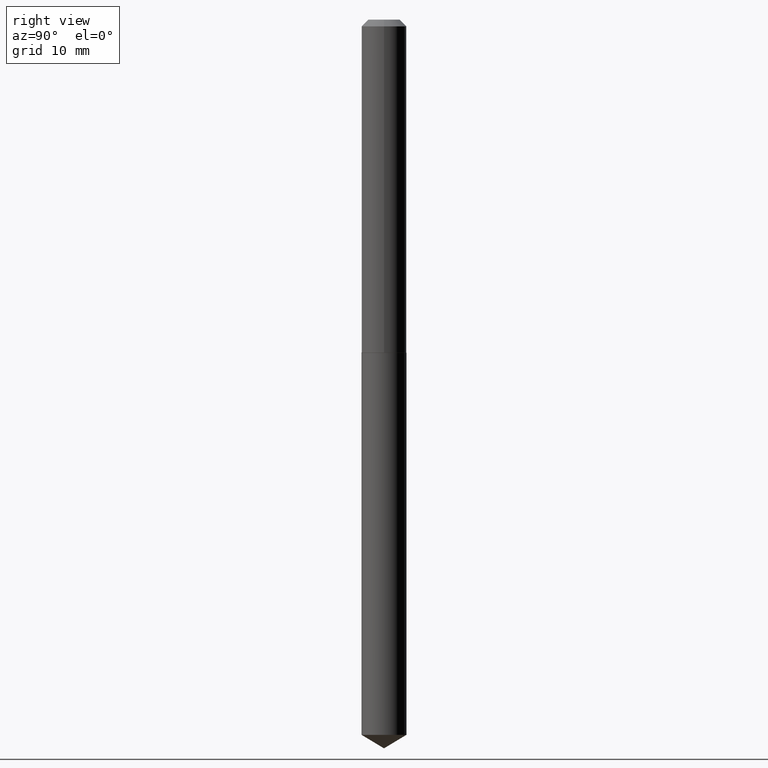
[diagram: clean part render]
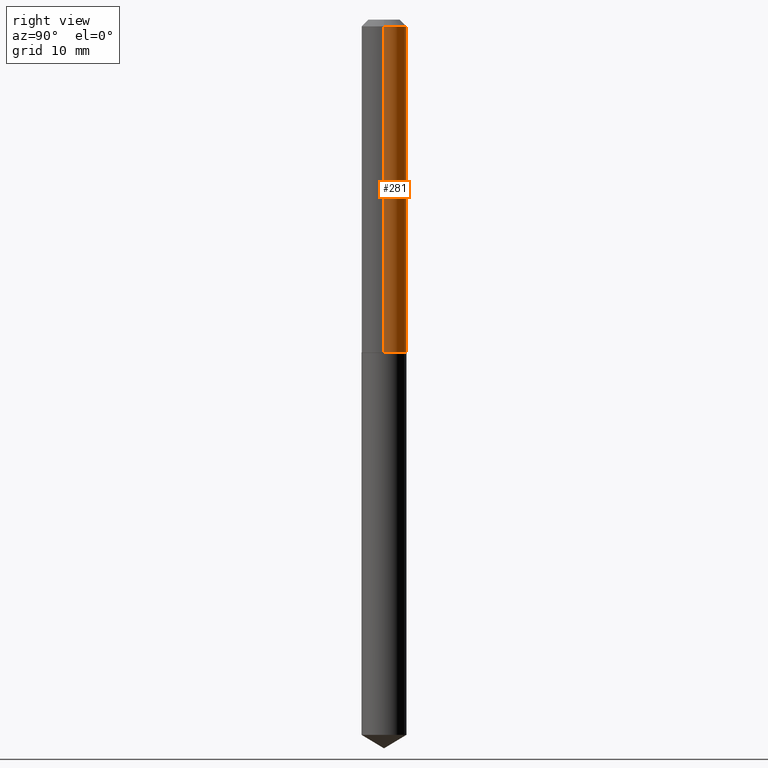
[diagram: same view with one face highlighted and labeled with its STEP entity id]
A machine part, right view. The second image highlights one B-rep face of the part: STEP entity #281.
In plain terms, the highlighted cylindrical surface (edge-blend (fillet) strip) has radius 2.6505 mm, axis along (-0, 0, 1).
Its self-contained STEP definition (entity closure, byte-faithful):
#1 = DIRECTION ( 'NONE',  ( -2.445468806185136597E-29, 3.491481338843145583E-15, 1.000000000000000000 ) ) ;
#12 = DIRECTION ( 'NONE',  ( -2.445468806185136597E-29, 3.491481338843145583E-15, 1.000000000000000000 ) ) ;
#28 = EDGE_LOOP ( 'NONE', ( #175, #182, #354, #53 ) ) ;
#40 = EDGE_CURVE ( 'NONE', #82, #241, #119, .T. ) ;
#47 = EDGE_CURVE ( 'NONE', #241, #323, #180, .T. ) ;
#49 = EDGE_CURVE ( 'NONE', #386, #323, #71, .T. ) ;
#53 = ORIENTED_EDGE ( 'NONE', *, *, #162, .F. ) ;
#58 = DIRECTION ( 'NONE',  ( -2.445468806185136597E-29, 3.491481338843145583E-15, 1.000000000000000000 ) ) ;
#71 = CIRCLE ( 'NONE', #127, 0.1043499999999999844 ) ;
#76 = CARTESIAN_POINT ( 'NONE',  ( 0.1043500000000000816, -7.286721554165625095E-16, 5.088290465543062912E-30 ) ) ;
#78 = CYLINDRICAL_SURFACE ( 'NONE', #196, 0.1043500000000000816 ) ;
#82 = VERTEX_POINT ( 'NONE', #349 ) ;
#83 = CARTESIAN_POINT ( 'NONE',  ( 0.1043499999999999844, -8.377809472554109199E-16, -0.03125000000000020817 ) ) ;
#98 = LINE ( 'NONE', #76, #286 ) ;
#100 = DIRECTION ( 'NONE',  ( -2.445468806185136877E-29, 3.491481338843145188E-15, 1.000000000000000000 ) ) ;
#116 = CARTESIAN_POINT ( 'NONE',  ( 3.782651149407169365E-29, -5.400623334922577222E-15, -1.546799999999999953 ) ) ;
#119 = CIRCLE ( 'NONE', #194, 0.1043500000000001787 ) ;
#124 = DIRECTION ( 'NONE',  ( 1.000000000000000000, -6.982962677686266711E-15, 0.000000000000000000 ) ) ;
#127 = AXIS2_PLACEMENT_3D ( 'NONE', #243, #1, #124 ) ;
#162 = EDGE_CURVE ( 'NONE', #82, #386, #98, .T. ) ;
#175 = ORIENTED_EDGE ( 'NONE', *, *, #40, .T. ) ;
#180 = LINE ( 'NONE', #304, #318 ) ;
#182 = ORIENTED_EDGE ( 'NONE', *, *, #47, .T. ) ;
#194 = AXIS2_PLACEMENT_3D ( 'NONE', #116, #58, #275 ) ;
#196 = AXIS2_PLACEMENT_3D ( 'NONE', #225, #12, #352 ) ;
#225 = CARTESIAN_POINT ( 'NONE',  ( 0.000000000000000000, 0.000000000000000000, 0.000000000000000000 ) ) ;
#241 = VERTEX_POINT ( 'NONE', #371 ) ;
#243 = CARTESIAN_POINT ( 'NONE',  ( 7.642090019328602662E-31, -1.091087918388490267E-16, -0.03125000000000020817 ) ) ;
#275 = DIRECTION ( 'NONE',  ( 1.000000000000000000, -6.982962677686269077E-15, 0.000000000000000000 ) ) ;
#281 = ADVANCED_FACE ( 'NONE', ( #295 ), #78, .T. ) ;
#286 = VECTOR ( 'NONE', #100, 39.37007874015748143 ) ;
#295 = FACE_OUTER_BOUND ( 'NONE', #28, .T. ) ;
#304 = CARTESIAN_POINT ( 'NONE',  ( -0.1043500000000000816, 7.414513447656651236E-16, -5.132908766680998310E-30 ) ) ;
#318 = VECTOR ( 'NONE', #390, 39.37007874015748143 ) ;
#323 = VERTEX_POINT ( 'NONE', #380 ) ;
#349 = CARTESIAN_POINT ( 'NONE',  ( 0.1043500000000001787, -6.129295490339141210E-15, -1.546799999999999953 ) ) ;
#352 = DIRECTION ( 'NONE',  ( 1.000000000000000000, -6.982962677686266711E-15, 4.876176775795935793E-29 ) ) ;
#354 = ORIENTED_EDGE ( 'NONE', *, *, #49, .F. ) ;
#371 = CARTESIAN_POINT ( 'NONE',  ( -0.1043500000000001787, -4.659171990156911506E-15, -1.546799999999999953 ) ) ;
#380 = CARTESIAN_POINT ( 'NONE',  ( -0.1043499999999999844, -2.013414718615047446E-15, -0.03125000000000020817 ) ) ;
#386 = VERTEX_POINT ( 'NONE', #83 ) ;
#390 = DIRECTION ( 'NONE',  ( -2.445468806185136877E-29, 3.491481338843145188E-15, 1.000000000000000000 ) ) ;